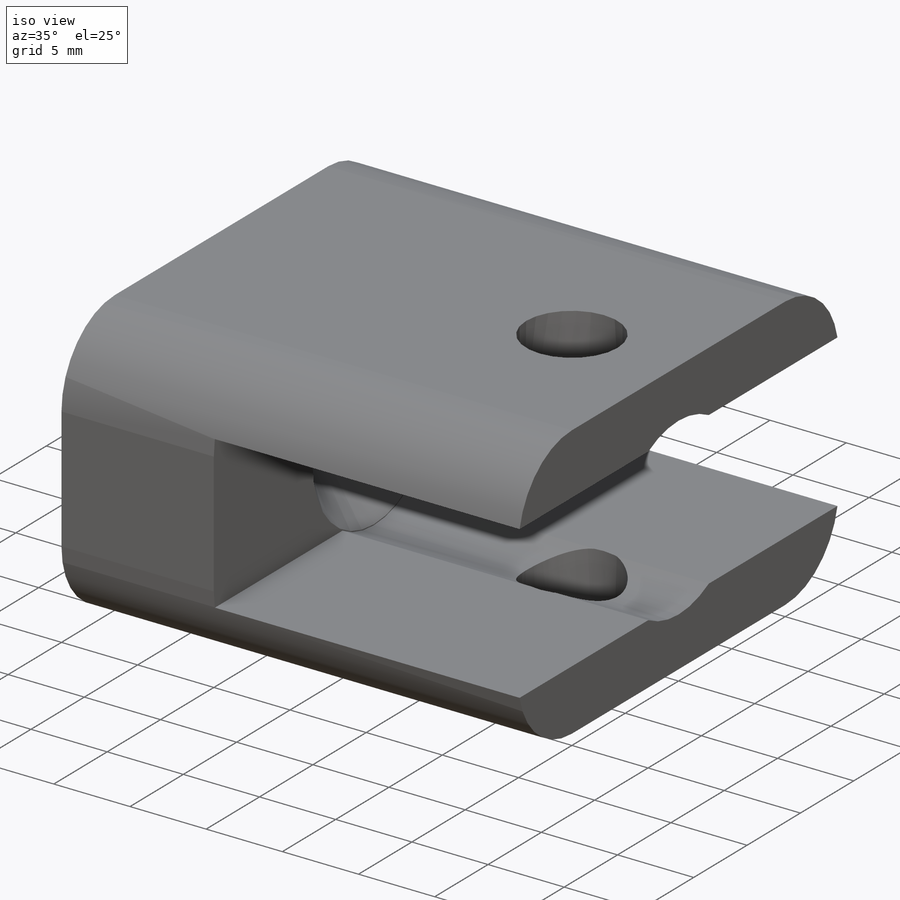
[diagram: iso view]
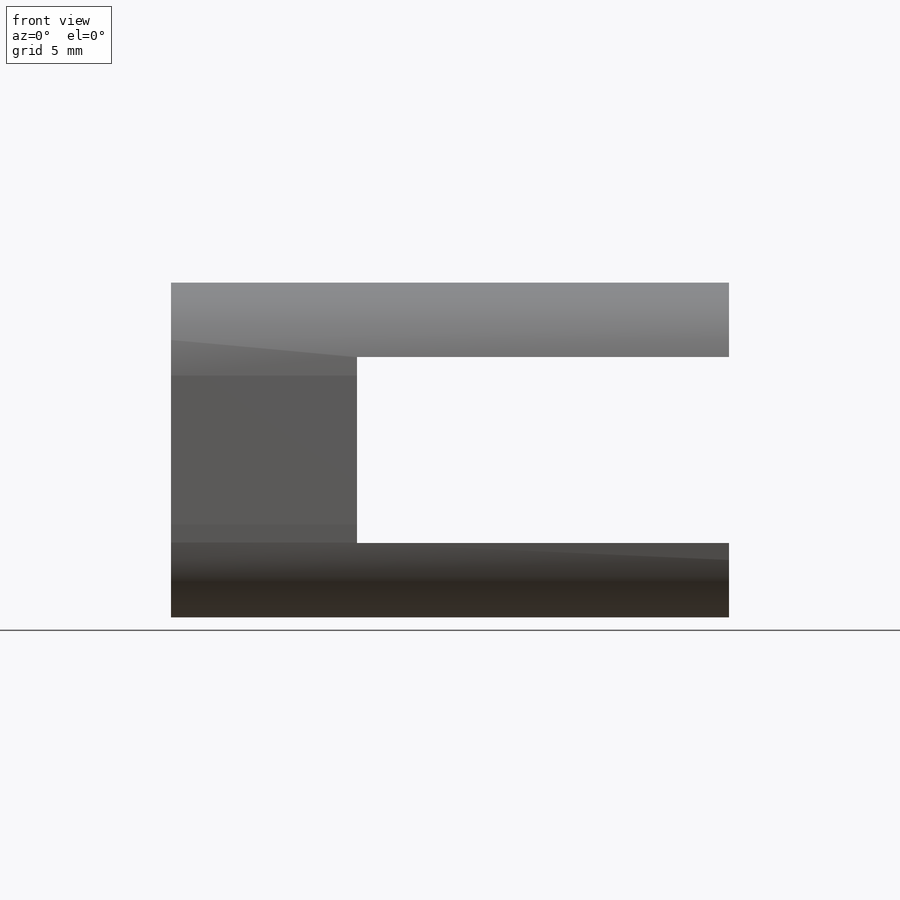
[diagram: front view]
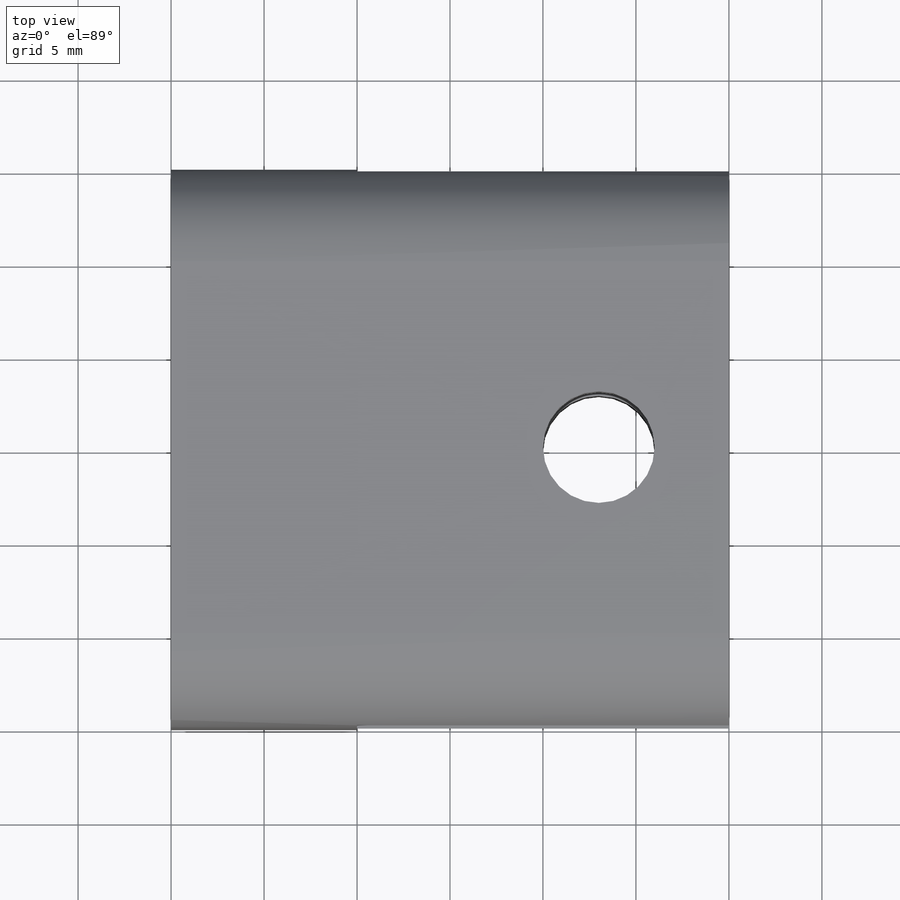
[diagram: top view]
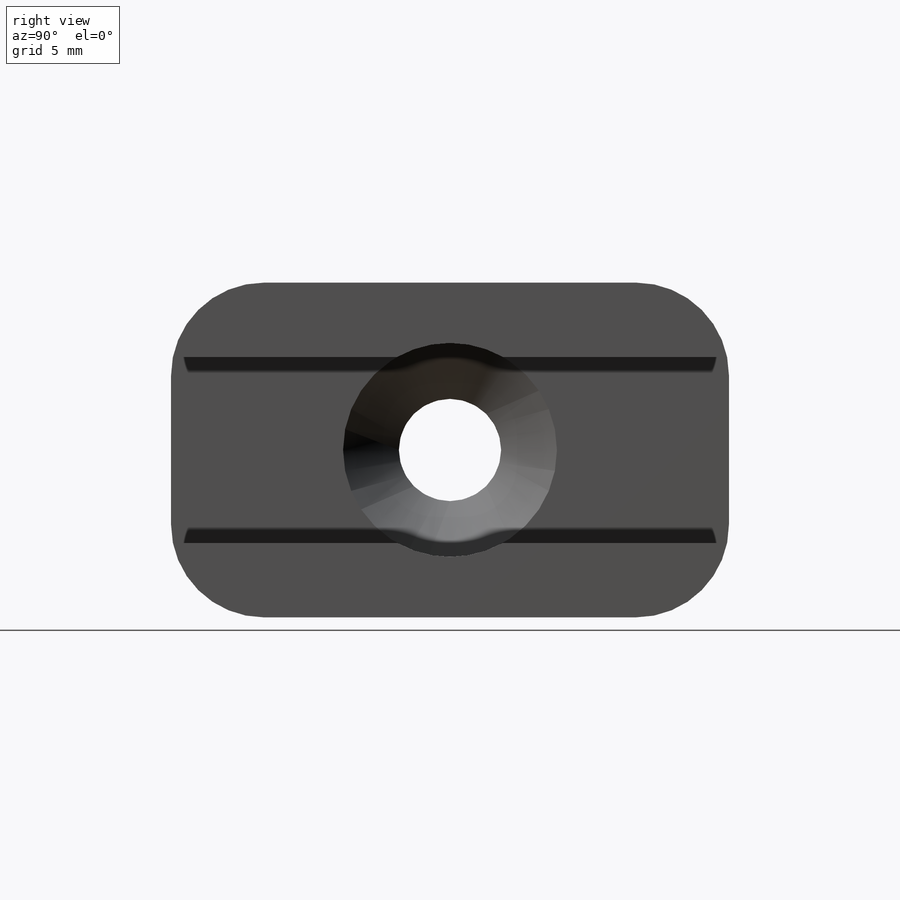
[diagram: right view]
SOLIDWORKS PART (.sldprt)
format: sldprt  version: not decoded by parser v0  size: 311,296 bytes
history: native  units: mm
features: sketch x10, plane x6, extrude x3, cut_extrude x2, hole x2, material x1, cut_revolve x1, fillet x1 (+9 scaffold rows collapsed)
feature tree (35):
  scaffold x9  (default folders/planes/origin — collapsed)
  material  "Matériau <non spécifié>"
  plane  "Plan de face"
  plane  "Plan de dessus"
  plane  "Plan de droite"
  plane  "Plan1"
  sketch  "Esquisse1"
  extrude  "Boss.-Extru.1"  Depth=4mm
  plane  "Plan2"  Offset=22.4mm
  sketch  "Esquisse2"
  cut_extrude  "Enlèv. mat.-Extru.1"  Depth=12.4mm
  sketch  "Esquisse3"
  extrude  "Boss.-Extru.2"  Depth=14mm
  sketch  "Esquisse4"
  extrude  "Boss.-Extru.3"  Depth=20mm
  sketch  "Esquisse5"  dims[D1=11.5mm D2=9.0mm D3=15.0mm]
  cut_extrude  "Enlèv. mat.-Extru.2"  Depth=20mm
  plane  "Plan3"
  sketch  "Esquisse7"  dims[c1.D1=2.75mm c1.D2=9.0mm c1.D3=7.0mm c1.D4=5.75mm c2.D4=45.0deg c2.D5=10.0mm]
  cut_revolve  "Enlèvement de matière-Révolution1"  Angle=360deg
  hole  "Diamètre du perçage Ø6.0 (6)1"  Diameter=6mm Depth=3.25mm
  sketch  "Esquisse9"
  sketch  "Esquisse8"  dims[hole-wizard template sketch: 59 standard entries collapsed; hole parameters kept: c18.Diamètre du perçage jusqu'au prochain=6.0mm c18.Profondeur du perçage jusqu'au prochain=3.25mm]
  hole  "Diamètre du perçage Ø6.0 (6)2"  Diameter=6mm Depth=18mm
  sketch  "Esquisse11"
  sketch  "Esquisse10"  dims[hole-wizard template sketch: 59 standard entries collapsed; hole parameters kept: c18.Diamètre du perçage jusqu'au prochain=6.0mm c18.Profondeur du perçage jusqu'au prochain=18.0mm]
  fillet  "Congé2"  Radius=5mm
decode coverage: 13 of 19 modeling features carry decoded parameters
note: ~ marks probable driven/reference dimensions
note: suppression state not decoded; provenance and decode notes live in map.json
